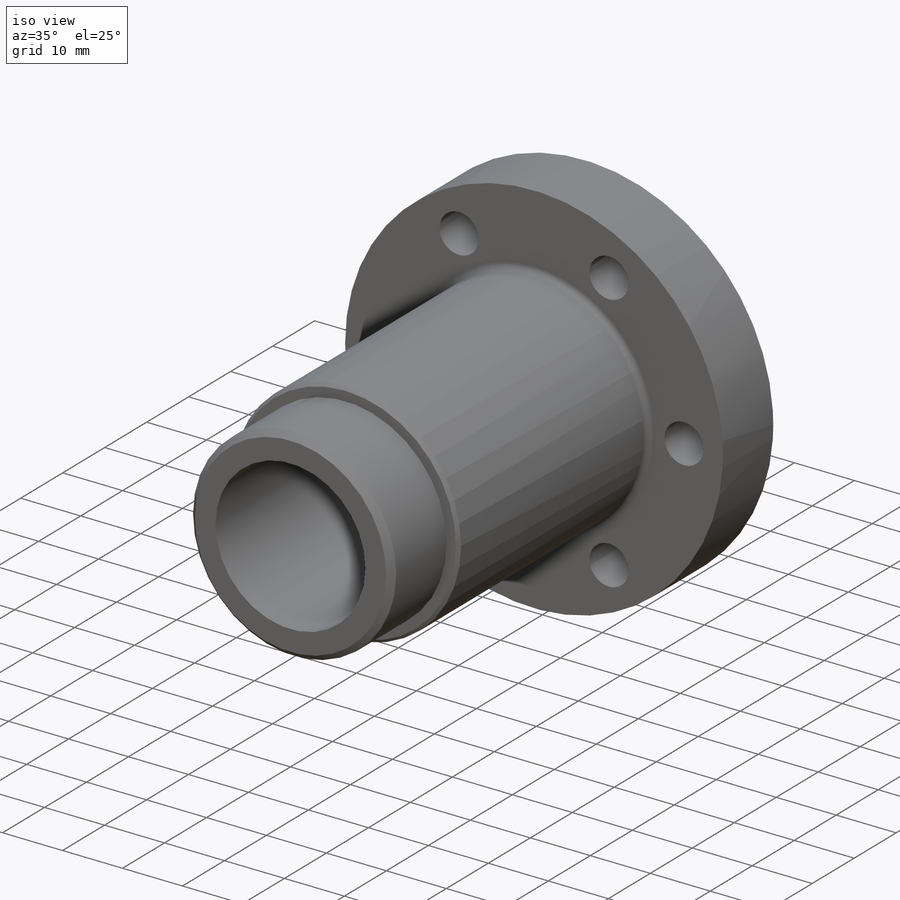
[diagram: iso view]
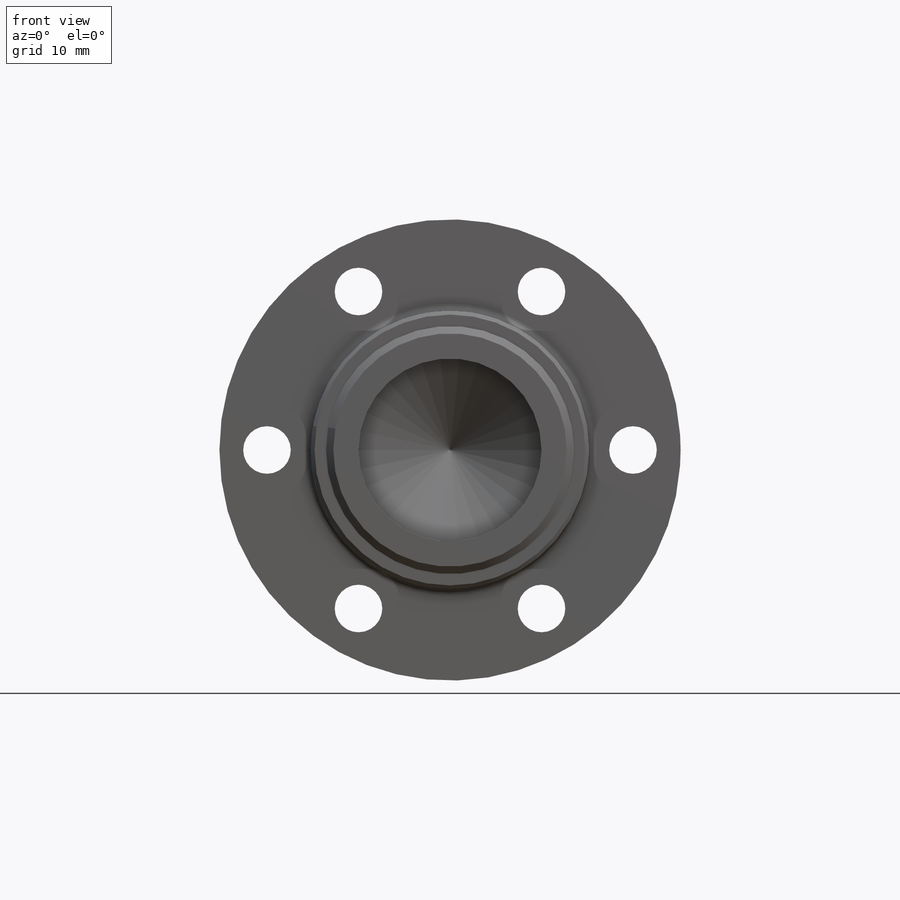
[diagram: front view]
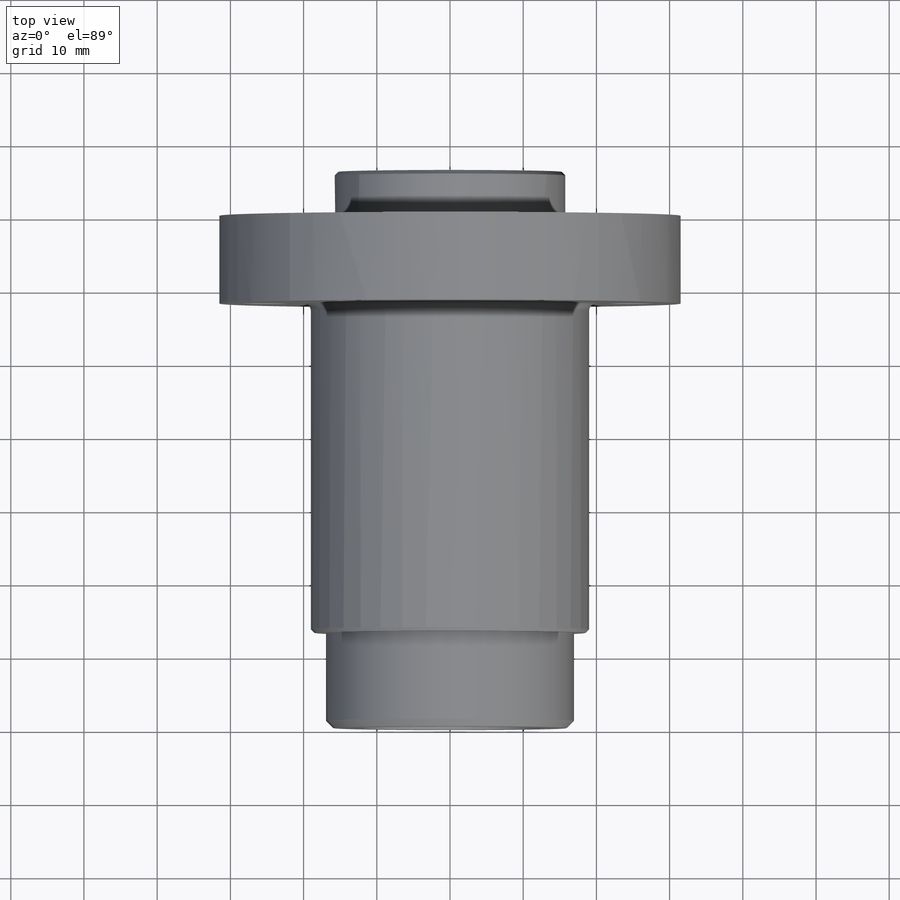
[diagram: top view]
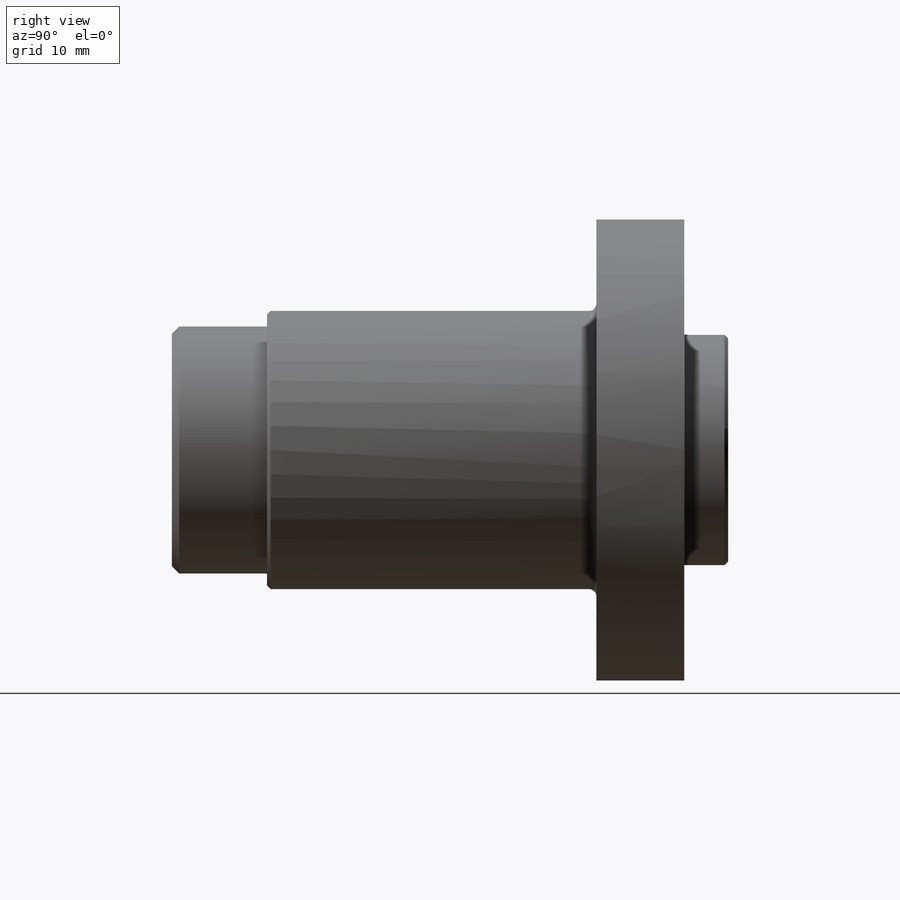
[diagram: right view]
SOLIDWORKS PART (.sldprt)
format: sldprt  version: not decoded by parser v0  size: 344,064 bytes
history: native  units: mm
features: sketch x10, extrude x4, chamfer x3, hole x2, material x1, fillet x1 (+13 scaffold rows collapsed)
feature tree (34):
  scaffold x13  (default folders/planes/origin — collapsed)
  material  "6061-T6 (SS)"
  sketch  "Sketch1"  dims[D1=63.0mm]
  extrude  "Boss-Extrude1"  Depth=12mm
  sketch  "Sketch3"  dims[D1=31.5mm]
  extrude  "Boss-Extrude2"  Depth=6mm
  sketch  "Sketch5"  dims[D2=6.0mm D1=25.0mm]
  sketch  "Sketch9"  dims[c1.D1=12.5mm c1.D2=50.0mm c2.D1=25.0mm c3.D1=30.0deg c3.D3=6.0]
  hole  "Ø6.5 (6.5) Diameter Hole1"  Diameter=6.5mm Depth=18mm
  sketch  "Sketch13"
  sketch  "Sketch12"  dims[hole-wizard template sketch: 59 standard entries collapsed; hole parameters kept: c18.Thru Hole Dia.=6.5mm c18.Thru Hole Depth=18.0mm]
  sketch  "Sketch14"  dims[D1=38.0mm]
  extrude  "Boss-Extrude4"  Depth=45mm
  chamfer  "Chamfer2"  Distance=0.5mm Angle=45deg
  fillet  "Fillet3"  Radius=1mm
  sketch  "Sketch15"  dims[D1=33.875mm]
  extrude  "Boss-Extrude6"  Depth=13mm
  chamfer  "Chamfer3"  Distance=1mm Angle=45deg
  chamfer  "Chamfer6"  Distance=0.5mm Angle=45deg
  hole  "Ø25.0mm Dowel Hole1"  Diameter=25mm Depth=45mm
  sketch  "Sketch17"
  sketch  "Sketch16"  dims[hole-wizard template sketch: 46 standard entries collapsed; hole parameters kept: c15.Hole Dia.=25.0mm c15.Hole Depth=45.0mm c15.D3=~14.816244mm c15.Drill Angle=118.0deg]
decode coverage: 18 of 20 modeling features carry decoded parameters
note: ~ marks probable driven/reference dimensions
note: suppression state not decoded; provenance and decode notes live in map.json
